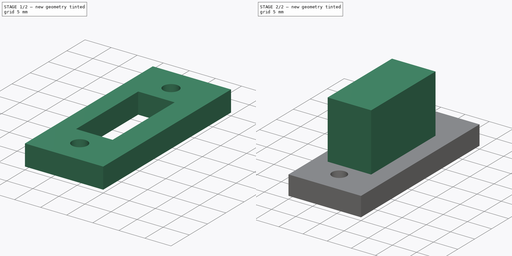
[diagram: build sequence overview — one tinted view per stage of 2, left to right]
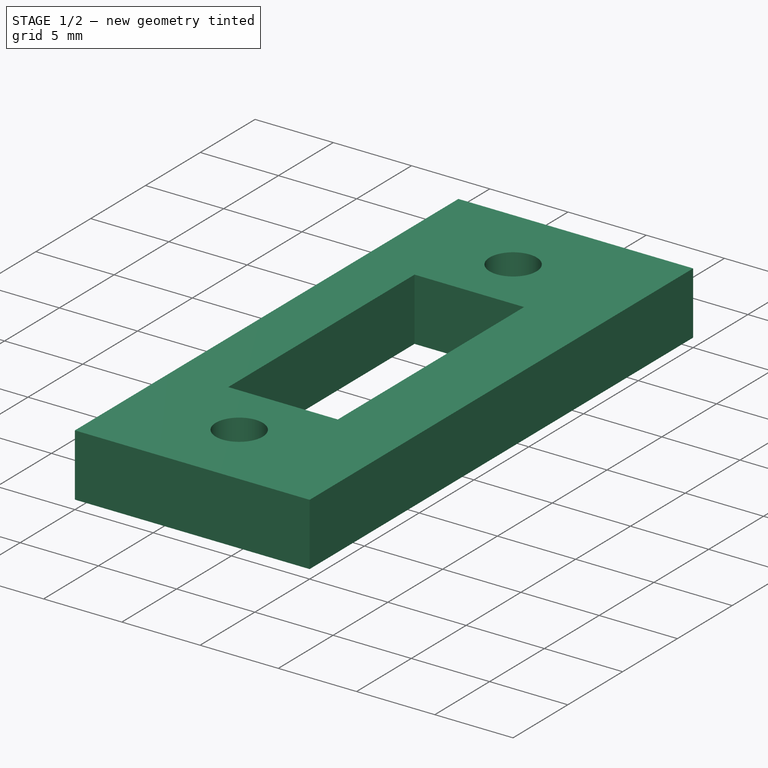
[diagram: stage 1 of 2 — iso view after this stage's code; geometry added in this stage tinted green]
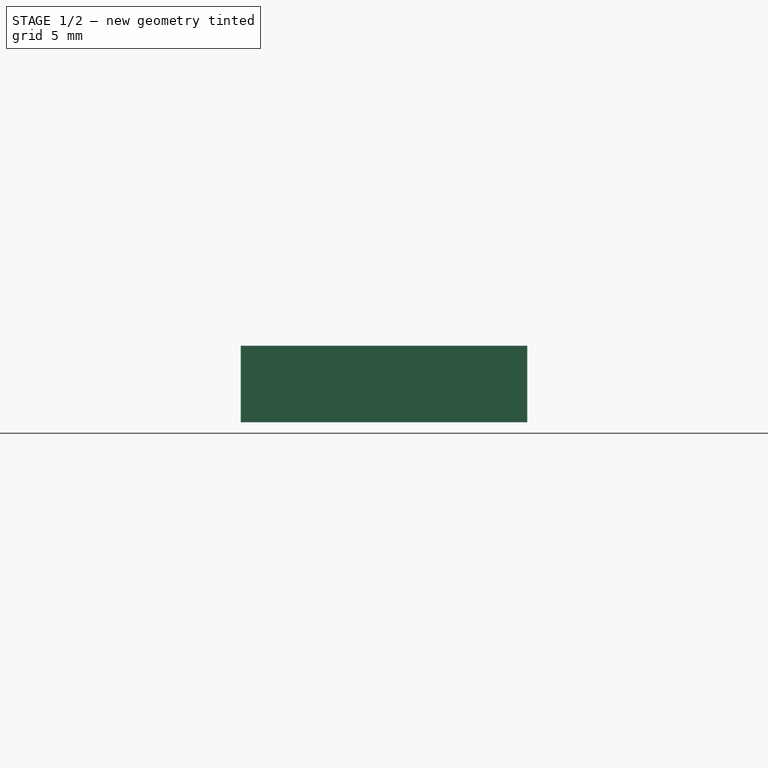
[diagram: stage 1 of 2 — front view after this stage's code; geometry added in this stage tinted green]
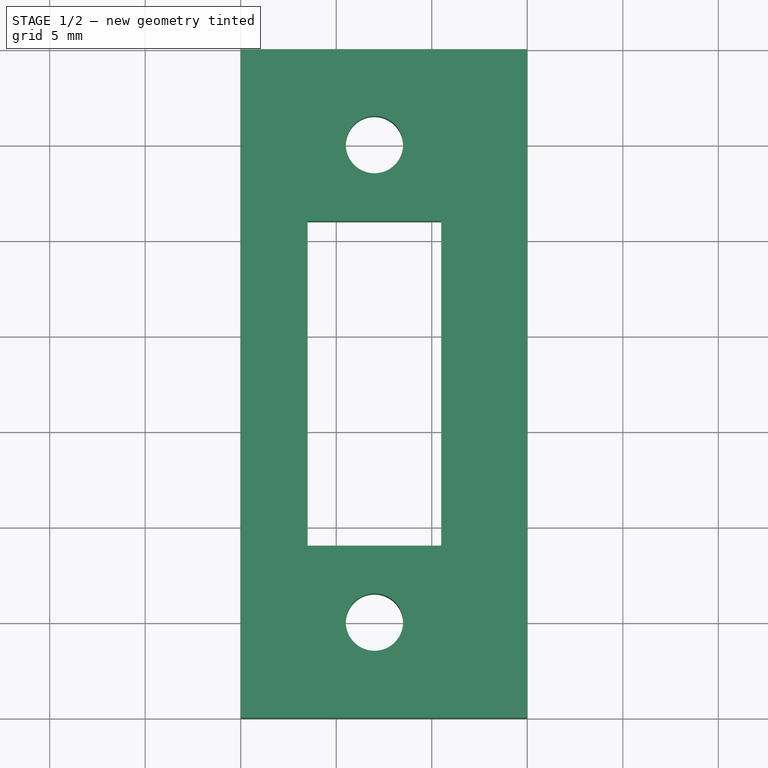
[diagram: stage 1 of 2 — top view after this stage's code; geometry added in this stage tinted green]
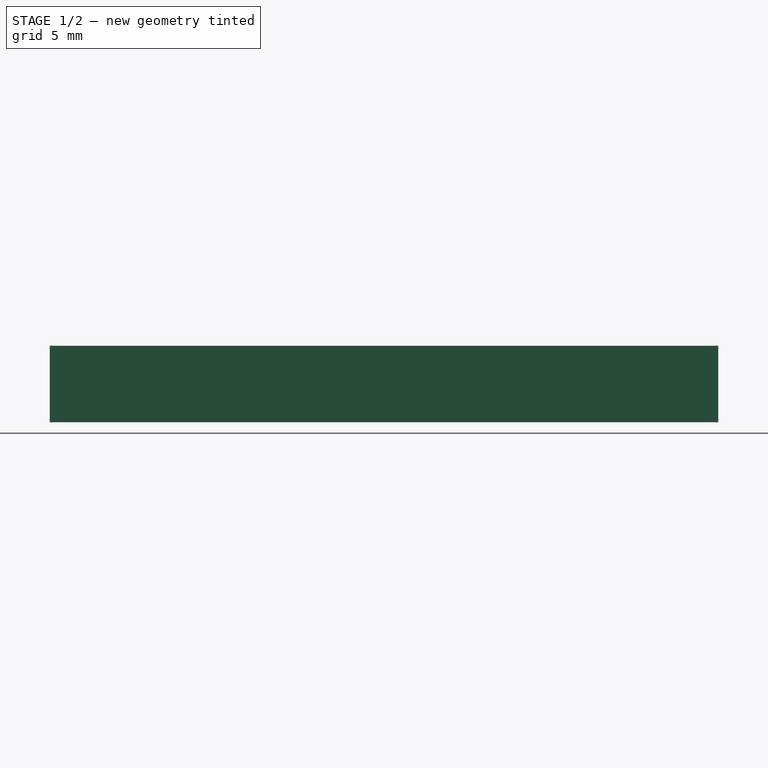
[diagram: stage 1 of 2 — right view after this stage's code; geometry added in this stage tinted green]
FCSTD DOCUMENT  (FreeCAD 0.16R6706 (Git))
Label: iROB-EA_Tapa_HDMI
License: All rights reserved
LicenseURL: http://en.wikipedia.org/wiki/All_rights_reserved
objects: Sketcher::SketchObject×4, PartDesign::Pad×3, PartDesign::Pocket×1
note: 12 computed .brp shape members not serialized (recipe doc carries the construction recipe); baked Part::Feature solids carry a one-line shape summary decoded from their .brp

FEATURE [Sketcher::SketchObject] Sketch  label="Base"
  sketch-geometry (4):
    g0: LineSegment StartX=0 StartY=35 StartZ=0 EndX=15 EndY=35 EndZ=0
    g1: LineSegment StartX=15 StartY=35 StartZ=0 EndX=15 EndY=0 EndZ=0
    g2: LineSegment StartX=15 StartY=0 StartZ=0 EndX=0 EndY=0 EndZ=0
    g3: LineSegment StartX=0 StartY=0 StartZ=0 EndX=0 EndY=35 EndZ=0
  constraints (11):
    c: Coincident(g0,g1)
    c: Coincident(g1,g2)
    c: Coincident(g2,g3)
    c: Coincident(g3,g0)
    c: Horizontal(g0)
    c: Horizontal(g2)
    c: Vertical(g1)
    c: Vertical(g3)
    c: DistanceX(g0,g0) = 15
    c: DistanceY(g1,g1) = 35
    c: Coincident(g2,g-1)
FEATURE [PartDesign::Pad] Pad
  Length = 4
  Length2 = 100
  Sketch = -> Sketch
  Type = 0
FEATURE [Sketcher::SketchObject] Sketch001  label="Tornillos"
  Placement = pos=(0,0,4) rot=(0,0,1;0rad)
  Support = -> Pad [Face6]
  sketch-geometry (6):
    g0: Circle CenterX=7 CenterY=30 CenterZ=0 NormalX=0 NormalY=0 NormalZ=1 Radius=1.5
    g1: Circle CenterX=7 CenterY=5 CenterZ=0 NormalX=0 NormalY=0 NormalZ=1 Radius=1.5
    g2: LineSegment StartX=3.5 StartY=26 StartZ=0 EndX=10.5 EndY=26 EndZ=0
    g3: LineSegment StartX=10.5 StartY=26 StartZ=0 EndX=10.5 EndY=9 EndZ=0
    g4: LineSegment StartX=10.5 StartY=9 StartZ=0 EndX=3.5 EndY=9 EndZ=0
    g5: LineSegment StartX=3.5 StartY=9 StartZ=0 EndX=3.5 EndY=26 EndZ=0
  constraints (18):
    c: Radius(g0) = 1.5
    c: Radius(g1) = 1.5
    c: DistanceX(g1,g0) = 0
    c: DistanceY(g1,g0) = 25
    c: DistanceY(g-1,g1) = 5
    c: DistanceX(g1,g-1) = -7
    c: Coincident(g2,g3)
    c: Coincident(g3,g4)
    c: Coincident(g4,g5)
    c: Coincident(g5,g2)
    c: Horizontal(g2)
    c: Horizontal(g4)
    c: Vertical(g3)
    c: Vertical(g5)
    c: DistanceX(g2,g2) = 7
    c: DistanceY(g3,g3) = 17
    c: DistanceY(g-1,g4) = 9
    c: DistanceX(g4,g-1) = -3.5
FEATURE [PartDesign::Pocket] Pocket
  Length = 4
  Sketch = -> Sketch001
  Type = 0
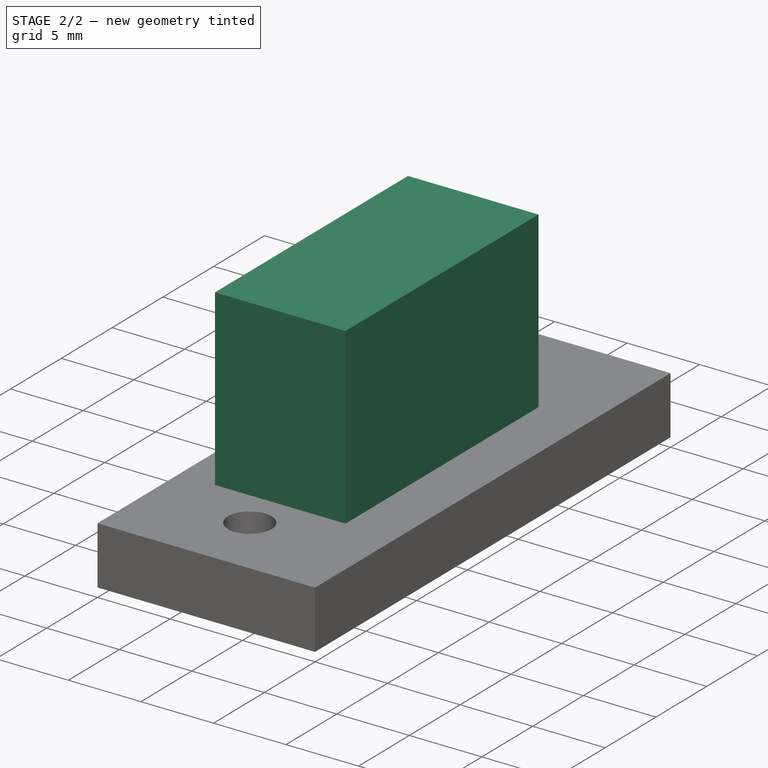
[diagram: stage 2 of 2 — iso view after this stage's code; geometry added in this stage tinted green]
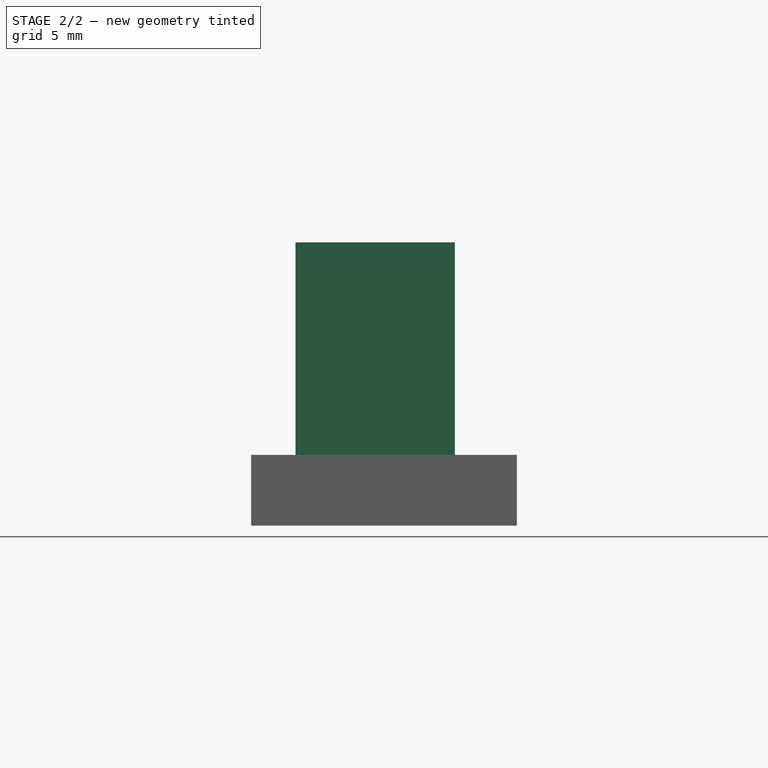
[diagram: stage 2 of 2 — front view after this stage's code; geometry added in this stage tinted green]
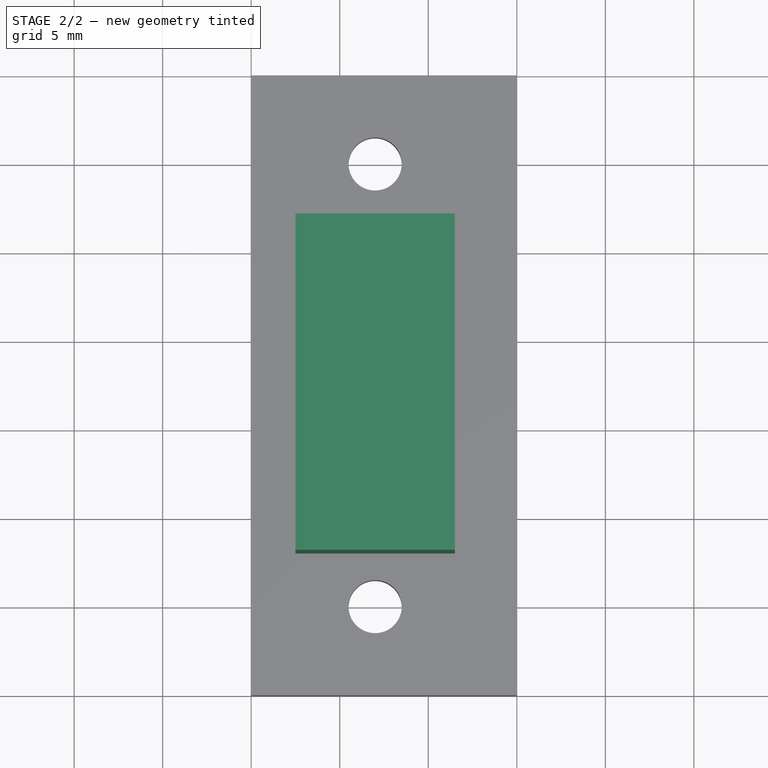
[diagram: stage 2 of 2 — top view after this stage's code; geometry added in this stage tinted green]
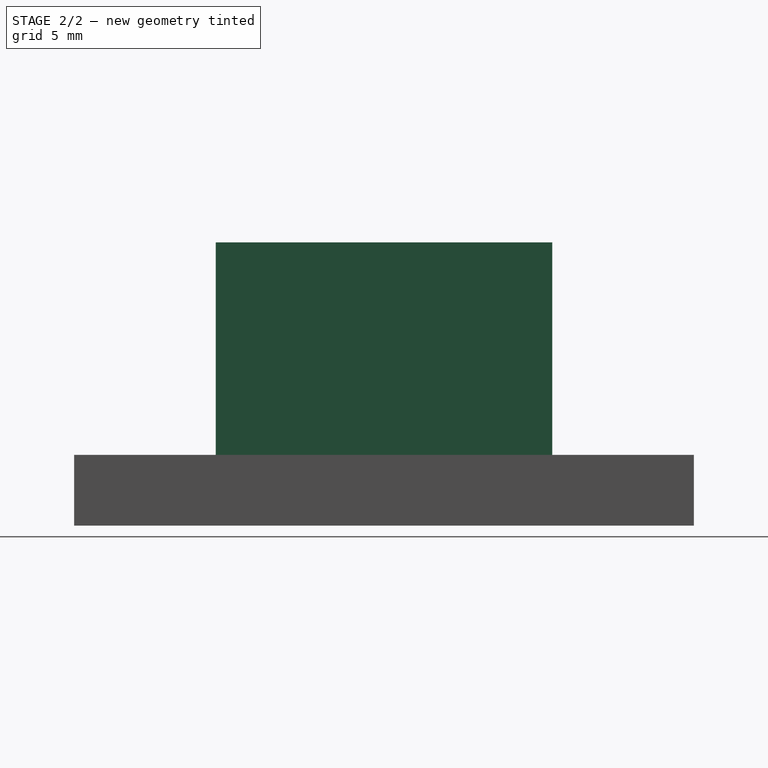
[diagram: stage 2 of 2 — right view after this stage's code; geometry added in this stage tinted green]
FEATURE [Sketcher::SketchObject] Sketch002  label="Cuerpo"
  Placement = pos=(0,0,4) rot=(0,0,1;0rad)
  Support = -> Pocket [Face5]
  sketch-geometry (8):
    g0: LineSegment StartX=3.5 StartY=26 StartZ=0 EndX=10.5 EndY=26 EndZ=0
    g1: LineSegment StartX=10.5 StartY=26 StartZ=0 EndX=10.5 EndY=9 EndZ=0
    g2: LineSegment StartX=10.5 StartY=9 StartZ=0 EndX=3.5 EndY=9 EndZ=0
    g3: LineSegment StartX=3.5 StartY=9 StartZ=0 EndX=3.5 EndY=26 EndZ=0
    g4: LineSegment StartX=2.5 StartY=27 StartZ=0 EndX=11.5 EndY=27 EndZ=0
    g5: LineSegment StartX=11.5 StartY=27 StartZ=0 EndX=11.5 EndY=8 EndZ=0
    g6: LineSegment StartX=11.5 StartY=8 StartZ=0 EndX=2.5 EndY=8 EndZ=0
    g7: LineSegment StartX=2.5 StartY=8 StartZ=0 EndX=2.5 EndY=27 EndZ=0
  constraints (24):
    c: Coincident(g0,g1)
    c: Coincident(g1,g2)
    c: Coincident(g2,g3)
    c: Coincident(g3,g0)
    c: Horizontal(g0)
    c: Horizontal(g2)
    c: Vertical(g1)
    c: Vertical(g3)
    c: DistanceX(g0,g0) = 7
    c: Coincident(g4,g5)
    c: Coincident(g5,g6)
    c: Coincident(g6,g7)
    c: Coincident(g7,g4)
    c: Horizontal(g4)
    c: Horizontal(g6)
    c: Vertical(g5)
    c: Vertical(g7)
    c: DistanceX(g4,g4) = 9
    c: DistanceY(g3,g3) = 17
    c: DistanceY(g7,g7) = 19
    c: DistanceX(g6,g2) = 1
    c: DistanceY(g6,g2) = 1
    c: DistanceY(g-1,g2) = 9
    c: DistanceX(g2,g-1) = -3.5
FEATURE [PartDesign::Pad] Pad001
  Length = 10
  Length2 = 100
  Sketch = -> Sketch002
  Type = 0
FEATURE [Sketcher::SketchObject] Sketch003  label="Tapa"
  Placement = pos=(0,0,14) rot=(0,0,1;0rad)
  Support = -> Pad001 [Face13]
  sketch-geometry (4):
    g0: LineSegment StartX=2.5 StartY=27 StartZ=0 EndX=11.5 EndY=27 EndZ=0
    g1: LineSegment StartX=11.5 StartY=27 StartZ=0 EndX=11.5 EndY=8 EndZ=0
    g2: LineSegment StartX=11.5 StartY=8 StartZ=0 EndX=2.5 EndY=8 EndZ=0
    g3: LineSegment StartX=2.5 StartY=8 StartZ=0 EndX=2.5 EndY=27 EndZ=0
  constraints (12):
    c: Coincident(g0,g1)
    c: Coincident(g1,g2)
    c: Coincident(g2,g3)
    c: Coincident(g3,g0)
    c: Horizontal(g0)
    c: Horizontal(g2)
    c: Vertical(g1)
    c: Vertical(g3)
    c: DistanceX(g0,g0) = 9
    c: DistanceY(g1,g1) = 19
    c: DistanceX(g-1,g2) = 2.5
    c: DistanceY(g-1,g2) = 8
FEATURE [PartDesign::Pad] Pad002
  Length = 2
  Length2 = 100
  Sketch = -> Sketch003
  Type = 0
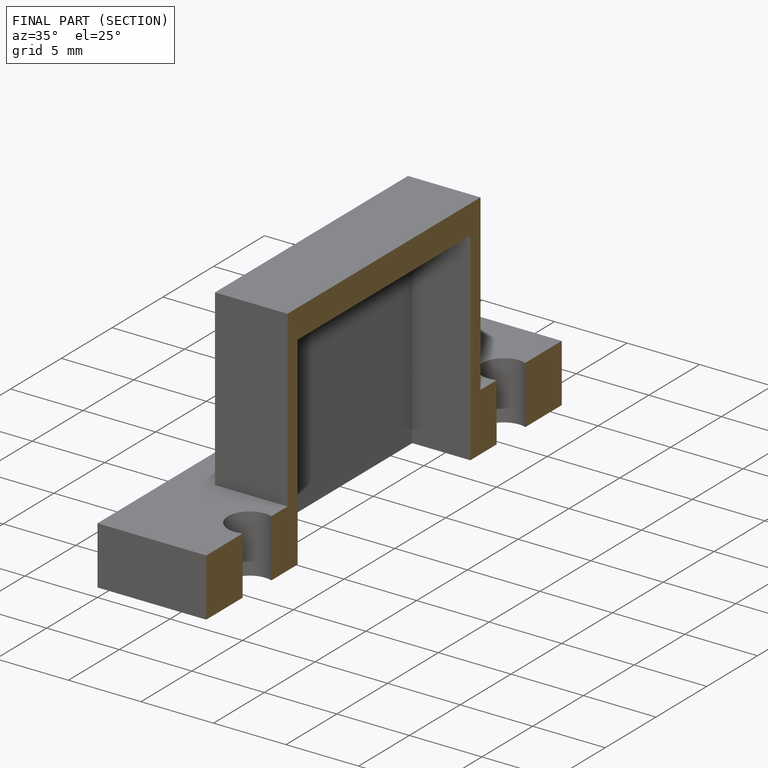
[diagram: finished part — half-section view (interior)]
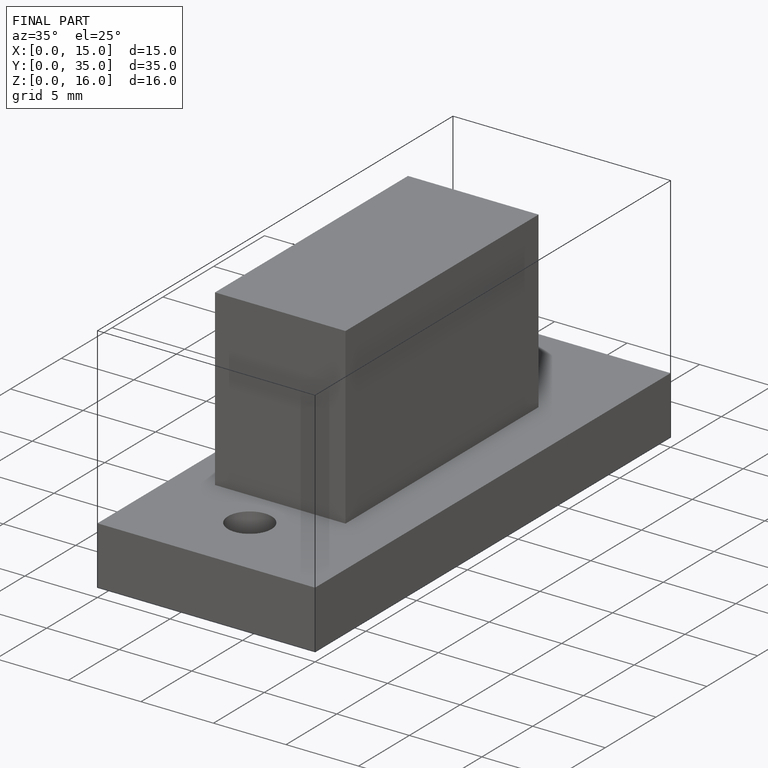
[diagram: finished part — iso view with bounding-box wireframe]
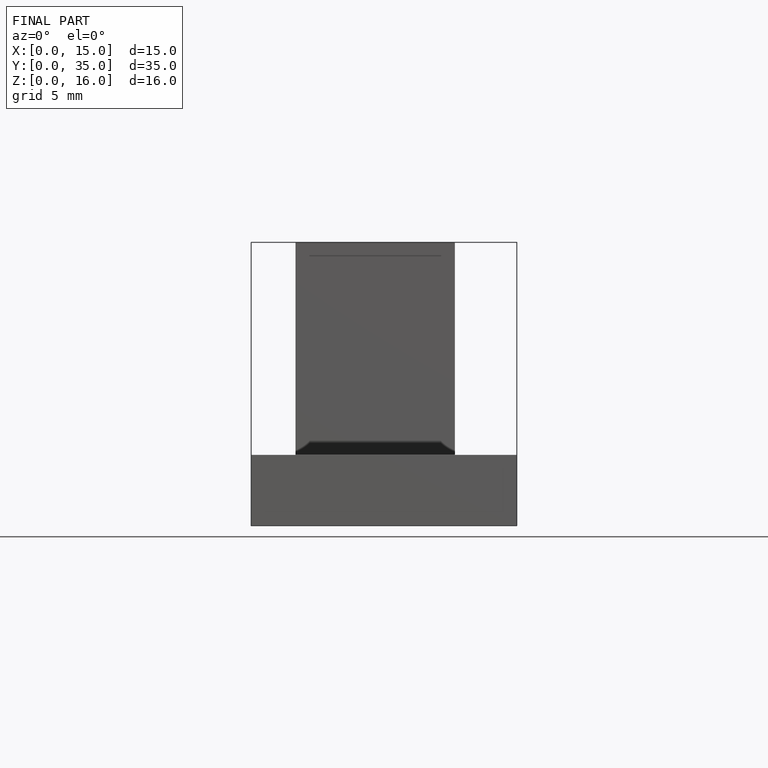
[diagram: finished part — front view with bounding-box wireframe]
